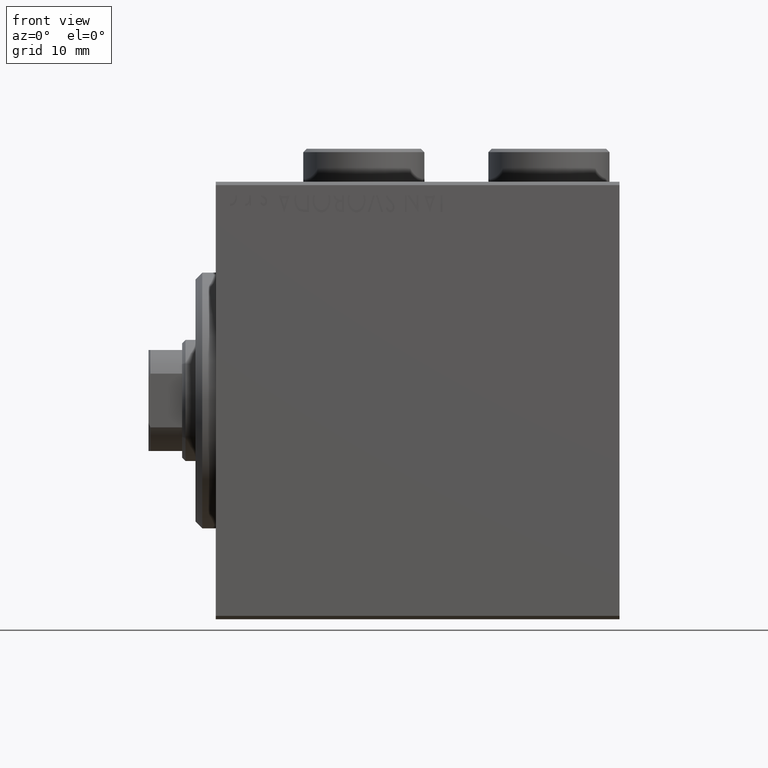
[diagram: clean part render]
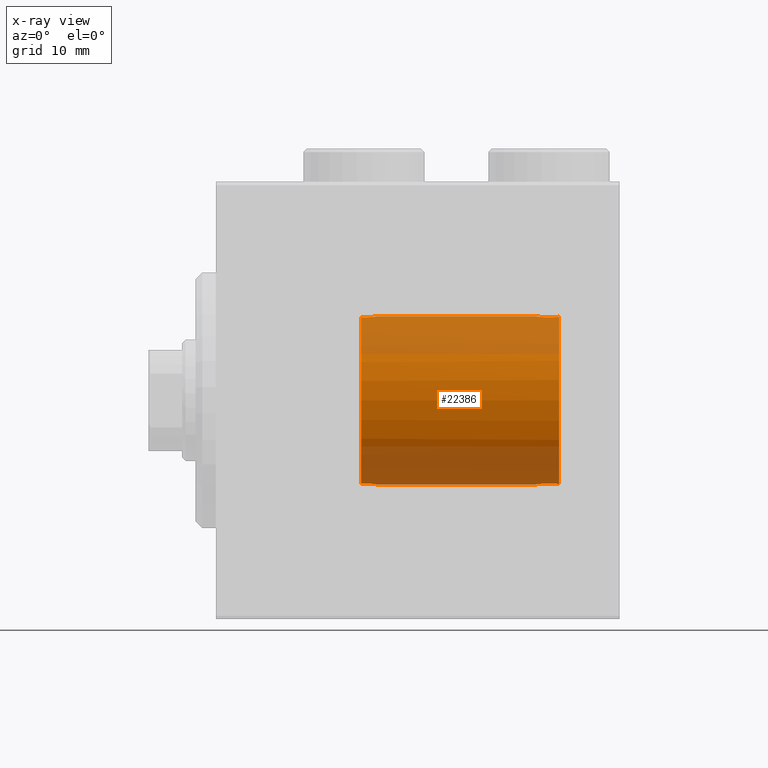
[diagram: x-ray — body ghosted, one internal face saturated and labeled with its STEP entity id]
A machine part, front view, then the same camera in x-ray: the body is ghosted and one INTERNAL B-rep face — a face not visible from any outside direction — is saturated and labeled: STEP entity #22386.
In plain terms, the highlighted cylindrical surface (partial cylindrical patch) has radius 12.5 mm, axis along (-1, -0, -0).
Its self-contained STEP definition (entity closure, byte-faithful):
#225 = CARTESIAN_POINT ( 'NONE',  ( 51.00000000000000711, 0.000000000000000000, 0.000000000000000000 ) ) ;
#405 = CARTESIAN_POINT ( 'NONE',  ( 49.18080577472711923, -1.984657456431631495, -12.34144560212908281 ) ) ;
#1083 = CARTESIAN_POINT ( 'NONE',  ( 48.42854688107839678, -1.700931018996106436, -12.38437300663065876 ) ) ;
#1768 = CARTESIAN_POINT ( 'NONE',  ( 21.60000000000000142, -1.959591794226551498, 12.34544450394557380 ) ) ;
#1843 = CARTESIAN_POINT ( 'NONE',  ( 23.93314724436488916, -0.5913231332011221753, -12.48885326101652815 ) ) ;
#2208 = CARTESIAN_POINT ( 'NONE',  ( 23.66392509199964067, -1.119375815846664235, 12.45032218503570398 ) ) ;
#2440 = CARTESIAN_POINT ( 'NONE',  ( 23.74294733412908087, -0.9918218938939140639, 12.46129877372112560 ) ) ;
#2672 = CARTESIAN_POINT ( 'NONE',  ( 48.98184397579840521, -1.942358223559711661, 12.34838176837820889 ) ) ;
#2677 = CARTESIAN_POINT ( 'NONE',  ( 23.14996846186599555, -1.643085694597724800, -12.39190363412062901 ) ) ;
#2901 = CARTESIAN_POINT ( 'NONE',  ( 48.10833807546940477, -1.450617801495374115, 12.41618001124376569 ) ) ;
#5022 = CARTESIAN_POINT ( 'NONE',  ( 51.00000000000000711, 0.000000000000000000, 0.000000000000000000 ) ) ;
#5041 = CARTESIAN_POINT ( 'NONE',  ( 21.60000000000000142, 0.000000000000000000, 0.000000000000000000 ) ) ;
#5165 = EDGE_CURVE ( 'NONE', #6230, #30034, #30064, .T. ) ;
#5374 = ORIENTED_EDGE ( 'NONE', *, *, #35857, .T. ) ;
#5459 = CARTESIAN_POINT ( 'NONE',  ( 23.02541152124766199, -1.723401116109633424, 12.38080331456884053 ) ) ;
#5849 = B_SPLINE_CURVE_WITH_KNOTS ( 'NONE', 3,
 ( #22596, #16979, #1843, #31051, #9604, #29977, #37712, #2677, #23896, #45085, #19137, #6140, #41623, #6592 ),
 .UNSPECIFIED., .F., .F.,
 ( 4, 2, 2, 2, 2, 2, 4 ),
 ( 0.006262980370572176700, 0.007146313903596190550, 0.007587980670108197476, 0.008029647436620204401, 0.008471314203132211326, 0.008912980969644218252, 0.009796314502668242510 ),
 .UNSPECIFIED. ) ;
#5896 = CARTESIAN_POINT ( 'NONE',  ( 21.89226596217898191, -2.002613154290233677, 12.33853921539895460 ) ) ;
#6140 = CARTESIAN_POINT ( 'NONE',  ( 22.19280044267752317, -2.012391920777528931, -12.33715470381634027 ) ) ;
#6230 = VERTEX_POINT ( 'NONE', #37254 ) ;
#6587 = CARTESIAN_POINT ( 'NONE',  ( 49.58327474022404147, -2.008486068678527303, 12.33759019476317320 ) ) ;
#6592 = CARTESIAN_POINT ( 'NONE',  ( 21.60000000000000142, -1.959591794226549277, -12.34544450394557558 ) ) ;
#6917 = ORIENTED_EDGE ( 'NONE', *, *, #35641, .T. ) ;
#7997 = CARTESIAN_POINT ( 'NONE',  ( 48.60362877792451286, -1.799294596715347971, -12.37003532234930603 ) ) ;
#8206 = CIRCLE ( 'NONE', #16300, 12.50000000000000000 ) ;
#8312 = VERTEX_POINT ( 'NONE', #21100 ) ;
#9072 = CARTESIAN_POINT ( 'NONE',  ( 51.00000000000000711, 0.000000000000000000, 12.50000000000000000 ) ) ;
#9136 = CARTESIAN_POINT ( 'NONE',  ( 23.15003876050212384, -1.642970880560013613, 12.39191506028467771 ) ) ;
#9604 = CARTESIAN_POINT ( 'NONE',  ( 23.66470425100231623, -1.118200797518082767, -12.45042751668564307 ) ) ;
#10246 = EDGE_CURVE ( 'NONE', #6230, #8312, #15738, .T. ) ;
#10277 = CARTESIAN_POINT ( 'NONE',  ( 47.65111687131940243, -0.7888122891505918721, 12.47657173513424489 ) ) ;
#11005 = CARTESIAN_POINT ( 'NONE',  ( 47.49999999999999289, 1.530808498934191127E-15, -12.50000000000000000 ) ) ;
#11679 = CARTESIAN_POINT ( 'NONE',  ( 48.10873976546010056, -1.451059294866322347, -12.41613015482389493 ) ) ;
#12371 = CARTESIAN_POINT ( 'NONE',  ( 22.62167100186951885, -1.906644611147662038, 12.35378414576433848 ) ) ;
#13279 = CARTESIAN_POINT ( 'NONE',  ( 48.42738723239509113, -1.700151984080955359, 12.38447824127646157 ) ) ;
#14231 = CARTESIAN_POINT ( 'NONE',  ( 49.58383975051394543, -2.008412574410691320, -12.33760202391980165 ) ) ;
#14458 = CARTESIAN_POINT ( 'NONE',  ( 47.65211717059433738, -0.7912052260496477141, -12.47642217115676999 ) ) ;
#14682 = CARTESIAN_POINT ( 'NONE',  ( 50.36746739686750374, -1.813190807807119720, -12.36824070762423133 ) ) ;
#15427 = CARTESIAN_POINT ( 'NONE',  ( 24.00000000000000000, 0.000000000000000000, 12.50000000000000000 ) ) ;
#15738 = B_SPLINE_CURVE_WITH_KNOTS ( 'NONE', 3,
 ( #24117, #20434, #16740, #10277, #41160, #38158, #2901, #13279, #23443, #2672, #24344, #6587, #34486, #16973, #20666, #17209, #31045, #38389 ),
 .UNSPECIFIED., .F., .F.,
 ( 4, 2, 2, 2, 2, 2, 2, 2, 4 ),
 ( 0.006262980370572174098, 0.006865869156569327954, 0.007468757942566480942, 0.008071646728563634798, 0.008674535514560788654, 0.009277424300557942510, 0.009880313086555094632, 0.01048320187255224849, 0.01108609065854940234 ),
 .UNSPECIFIED. ) ;
#15828 = CARTESIAN_POINT ( 'NONE',  ( 21.74406309532660586, -1.988998550419558864, 12.34077677099256398 ) ) ;
#16073 = DIRECTION ( 'NONE',  ( -1.000000000000000000, -0.000000000000000000, -0.000000000000000000 ) ) ;
#16279 = CARTESIAN_POINT ( 'NONE',  ( 23.93225181751675734, -0.5938915967773831239, 12.48871506440437784 ) ) ;
#16300 = AXIS2_PLACEMENT_3D ( 'NONE', #225, #42389, #17293 ) ;
#16319 = VERTEX_POINT ( 'NONE', #17699 ) ;
#16637 = ORIENTED_EDGE ( 'NONE', *, *, #26966, .T. ) ;
#16740 = CARTESIAN_POINT ( 'NONE',  ( 47.53093414927128180, -0.4041946641516754313, 12.49494672909561466 ) ) ;
#16973 = CARTESIAN_POINT ( 'NONE',  ( 50.17771318596242480, -1.892444135111798875, 12.35601370027699630 ) ) ;
#16979 = CARTESIAN_POINT ( 'NONE',  ( 24.00000000000000355, -0.2948070512941219912, -12.50000000000000178 ) ) ;
#17209 = CARTESIAN_POINT ( 'NONE',  ( 50.71007472988200249, -1.605007011565836361, 12.39697672430507147 ) ) ;
#17293 = DIRECTION ( 'NONE',  ( 0.000000000000000000, 0.000000000000000000, 1.000000000000000000 ) ) ;
#17698 = CARTESIAN_POINT ( 'NONE',  ( 49.78760707246136263, -1.989402790922017106, -12.34077351860467253 ) ) ;
#17699 = CARTESIAN_POINT ( 'NONE',  ( 24.00000000000000000, 1.530808426277417854E-15, -12.50000000000000000 ) ) ;
#18125 = CARTESIAN_POINT ( 'NONE',  ( 47.49999999999999289, 1.530808498934191127E-15, -12.50000000000000000 ) ) ;
#18778 = DIRECTION ( 'NONE',  ( -1.000000000000000000, -0.000000000000000000, -0.000000000000000000 ) ) ;
#19137 = CARTESIAN_POINT ( 'NONE',  ( 22.62209686606905379, -1.906493850659870537, -12.35380743149953631 ) ) ;
#19549 = FACE_OUTER_BOUND ( 'NONE', #27853, .T. ) ;
#19752 = CARTESIAN_POINT ( 'NONE',  ( 23.37953558611473426, -1.455618092656345786, 12.41531667514001569 ) ) ;
#19949 = CARTESIAN_POINT ( 'NONE',  ( 21.60000000000000142, -1.959591794226551498, 12.34544450394557380 ) ) ;
#19969 = CARTESIAN_POINT ( 'NONE',  ( 24.00000000000000711, -0.2984775718359609087, 12.50000000000000178 ) ) ;
#20434 = CARTESIAN_POINT ( 'NONE',  ( 47.49999999999997868, -0.2012103680131457906, 12.50000000000000000 ) ) ;
#20666 = CARTESIAN_POINT ( 'NONE',  ( 50.36681904443987889, -1.813547105335512333, 12.36819009826685267 ) ) ;
#21100 = CARTESIAN_POINT ( 'NONE',  ( 51.00000000000000711, -1.322875655532295580, 12.42980289465605281 ) ) ;
#22386 = ADVANCED_FACE ( 'NONE', ( #19549 ), #33599, .F. ) ;
#22412 = B_SPLINE_CURVE_WITH_KNOTS ( 'NONE', 3,
 ( #31987, #32660, #43243, #14682, #35207, #17698, #14231, #405, #32213, #7997, #1083, #11679, #28765, #24842, #14458, #42799, #31758, #11005 ),
 .UNSPECIFIED., .F., .F.,
 ( 4, 2, 2, 2, 2, 2, 2, 2, 4 ),
 ( 0.007704009012989673083, 0.008306559026792689412, 0.008909109040595705742, 0.009511659054398720337, 0.01011420906820173667, 0.01071675908200475300, 0.01131930909580776759, 0.01192185910961078392, 0.01252440912341380025 ),
 .UNSPECIFIED. ) ;
#22596 = CARTESIAN_POINT ( 'NONE',  ( 24.00000000000000000, 1.530808426277417854E-15, -12.50000000000000000 ) ) ;
#23303 = VERTEX_POINT ( 'NONE', #19949 ) ;
#23443 = CARTESIAN_POINT ( 'NONE',  ( 48.60199259921450476, -1.798561603665806308, 12.37014405429720476 ) ) ;
#23896 = CARTESIAN_POINT ( 'NONE',  ( 23.02642885203126610, -1.722812217822935477, -12.38088609841119592 ) ) ;
#24117 = CARTESIAN_POINT ( 'NONE',  ( 47.49999999999999289, -7.266434456262306043E-23, 12.50000000000000000 ) ) ;
#24344 = CARTESIAN_POINT ( 'NONE',  ( 49.17926163899189618, -1.984459088571224994, 12.34147763550941868 ) ) ;
#24842 = CARTESIAN_POINT ( 'NONE',  ( 47.74095410924028471, -0.9729659830398046383, -12.46319390912297642 ) ) ;
#26352 = DIRECTION ( 'NONE',  ( -1.000000000000000000, -0.000000000000000000, -0.000000000000000000 ) ) ;
#26486 = DIRECTION ( 'NONE',  ( 0.000000000000000000, 0.000000000000000000, 1.000000000000000000 ) ) ;
#26675 = CARTESIAN_POINT ( 'NONE',  ( 22.76259408886607361, -1.854731907996921780, 12.36181101904186619 ) ) ;
#26966 = EDGE_CURVE ( 'NONE', #23303, #30034, #30941, .T. ) ;
#27853 = EDGE_LOOP ( 'NONE', ( #5374, #32330, #38038, #6917, #16637, #32941, #34137, #38747 ) ) ;
#28765 = CARTESIAN_POINT ( 'NONE',  ( 47.97135785540805131, -1.305434197395114015, -12.43276746250906051 ) ) ;
#29788 = VERTEX_POINT ( 'NONE', #39740 ) ;
#29977 = CARTESIAN_POINT ( 'NONE',  ( 23.48330282664397828, -1.349602160395881656, -12.42747329027376324 ) ) ;
#30034 = VERTEX_POINT ( 'NONE', #15427 ) ;
#30064 = LINE ( 'NONE', #9072, #45419 ) ;
#30327 = AXIS2_PLACEMENT_3D ( 'NONE', #5041, #40300, #26486 ) ;
#30941 = B_SPLINE_CURVE_WITH_KNOTS ( 'NONE', 3,
 ( #1768, #15828, #5896, #37034, #40705, #12371, #26675, #5459, #9136, #19752, #33792, #2208, #2440, #16279, #19969, #34022 ),
 .UNSPECIFIED., .F., .F.,
 ( 4, 2, 2, 2, 2, 2, 2, 4 ),
 ( 0.008993949189123159188, 0.009435256680909488020, 0.009876564172695818586, 0.01031787166448214742, 0.01075917915626847798, 0.01120048664805480682, 0.01164179413984113738, 0.01252440912341379504 ),
 .UNSPECIFIED. ) ;
#31045 = CARTESIAN_POINT ( 'NONE',  ( 50.86744664609396693, -1.473177031196406528, 12.41380666104364927 ) ) ;
#31051 = CARTESIAN_POINT ( 'NONE',  ( 23.74378402848257252, -0.9904027418544105732, -12.46141573476677067 ) ) ;
#31344 = EDGE_CURVE ( 'NONE', #16319, #29788, #5849, .T. ) ;
#31424 = VERTEX_POINT ( 'NONE', #18125 ) ;
#31758 = CARTESIAN_POINT ( 'NONE',  ( 47.50000000000000000, -0.2037668387428292205, -12.50000000000000178 ) ) ;
#31987 = CARTESIAN_POINT ( 'NONE',  ( 51.00000000000000711, -1.322875655532297579, -12.42980289465605459 ) ) ;
#32213 = CARTESIAN_POINT ( 'NONE',  ( 48.98217734449560368, -1.942370230151947874, -12.34837774004982869 ) ) ;
#32330 = ORIENTED_EDGE ( 'NONE', *, *, #39126, .T. ) ;
#32617 = VECTOR ( 'NONE', #26352, 1000.000000000000000 ) ;
#32660 = CARTESIAN_POINT ( 'NONE',  ( 50.86753843343830539, -1.473072954130703716, -12.41381773772906527 ) ) ;
#32941 = ORIENTED_EDGE ( 'NONE', *, *, #5165, .F. ) ;
#33599 = CYLINDRICAL_SURFACE ( 'NONE', #33899, 12.50000000000000000 ) ;
#33792 = CARTESIAN_POINT ( 'NONE',  ( 23.48219734671673464, -1.350829357940619868, 12.42734021317595960 ) ) ;
#33899 = AXIS2_PLACEMENT_3D ( 'NONE', #5022, #16073, #44183 ) ;
#34022 = CARTESIAN_POINT ( 'NONE',  ( 24.00000000000000000, 0.000000000000000000, 12.50000000000000000 ) ) ;
#34137 = ORIENTED_EDGE ( 'NONE', *, *, #10246, .T. ) ;
#34241 = EDGE_CURVE ( 'NONE', #36131, #8312, #8206, .T. ) ;
#34486 = CARTESIAN_POINT ( 'NONE',  ( 49.78641310403624232, -1.989624964857126699, 12.34073789792041254 ) ) ;
#35207 = CARTESIAN_POINT ( 'NONE',  ( 50.17791464597166851, -1.892319482919101681, -12.35603259450975244 ) ) ;
#35641 = EDGE_CURVE ( 'NONE', #29788, #23303, #37636, .T. ) ;
#35857 = EDGE_CURVE ( 'NONE', #36131, #31424, #22412, .T. ) ;
#36131 = VERTEX_POINT ( 'NONE', #39285 ) ;
#37034 = CARTESIAN_POINT ( 'NONE',  ( 22.18929723264292875, -1.996555189909668071, 12.33952093030028863 ) ) ;
#37254 = CARTESIAN_POINT ( 'NONE',  ( 47.49999999999999289, -7.266434456262306043E-23, 12.50000000000000000 ) ) ;
#37636 = CIRCLE ( 'NONE', #30327, 12.50000000000000000 ) ;
#37712 = CARTESIAN_POINT ( 'NONE',  ( 23.38053361785755513, -1.454745679850352635, -12.41542271870275016 ) ) ;
#38038 = ORIENTED_EDGE ( 'NONE', *, *, #31344, .T. ) ;
#38158 = CARTESIAN_POINT ( 'NONE',  ( 47.96998392213196638, -1.303740581626146033, 12.43294048548436415 ) ) ;
#38389 = CARTESIAN_POINT ( 'NONE',  ( 51.00000000000000711, -1.322875655532295580, 12.42980289465605281 ) ) ;
#38747 = ORIENTED_EDGE ( 'NONE', *, *, #34241, .F. ) ;
#39126 = EDGE_CURVE ( 'NONE', #31424, #16319, #43838, .T. ) ;
#39285 = CARTESIAN_POINT ( 'NONE',  ( 51.00000000000000711, -1.322875655532297579, -12.42980289465605459 ) ) ;
#39705 = CARTESIAN_POINT ( 'NONE',  ( 51.00000000000000711, 1.530808498934191521E-15, -12.50000000000000000 ) ) ;
#39740 = CARTESIAN_POINT ( 'NONE',  ( 21.60000000000000142, -1.959591794226549277, -12.34544450394557558 ) ) ;
#40300 = DIRECTION ( 'NONE',  ( -1.000000000000000000, 0.000000000000000000, 0.000000000000000000 ) ) ;
#40705 = CARTESIAN_POINT ( 'NONE',  ( 22.33515454227092789, -1.977230371145209498, 12.34268351910465356 ) ) ;
#41160 = CARTESIAN_POINT ( 'NONE',  ( 47.74046257760226553, -0.9719654118822560473, 12.46326730267306893 ) ) ;
#41623 = CARTESIAN_POINT ( 'NONE',  ( 21.88865765798350793, -2.018513791927082579, -12.33609181817095823 ) ) ;
#42389 = DIRECTION ( 'NONE',  ( -1.000000000000000000, 0.000000000000000000, 0.000000000000000000 ) ) ;
#42799 = CARTESIAN_POINT ( 'NONE',  ( 47.53135420449311255, -0.4063377816220735683, -12.49487917148008975 ) ) ;
#43243 = CARTESIAN_POINT ( 'NONE',  ( 50.70997495299883440, -1.605029969583056770, -12.39697212645046243 ) ) ;
#43838 = LINE ( 'NONE', #39705, #32617 ) ;
#44183 = DIRECTION ( 'NONE',  ( 0.000000000000000000, 0.000000000000000000, 1.000000000000000000 ) ) ;
#45085 = CARTESIAN_POINT ( 'NONE',  ( 22.76332311719972523, -1.854447611799994622, -12.36185449577857298 ) ) ;
#45419 = VECTOR ( 'NONE', #18778, 1000.000000000000000 ) ;